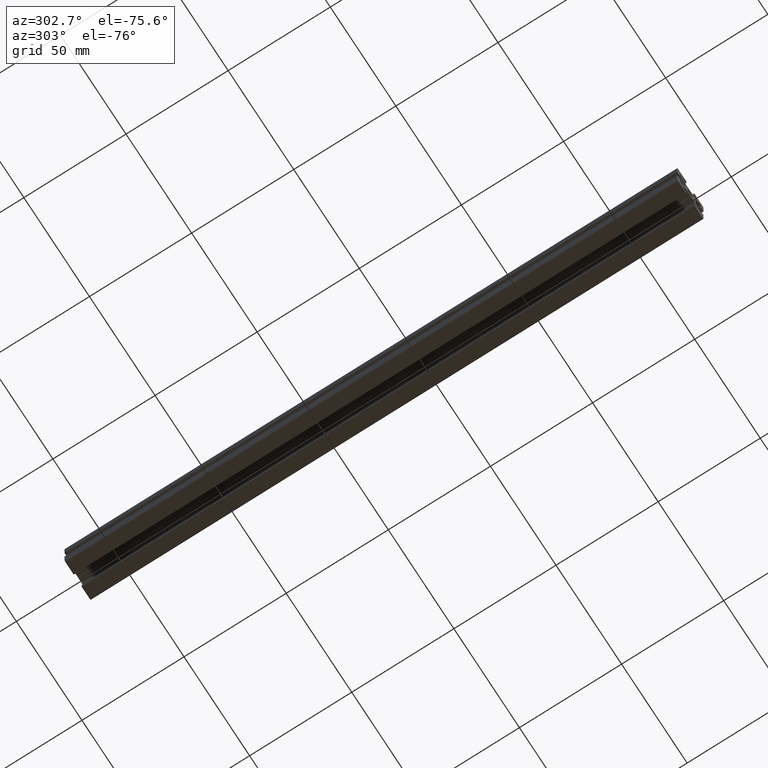
[diagram: clean part render]
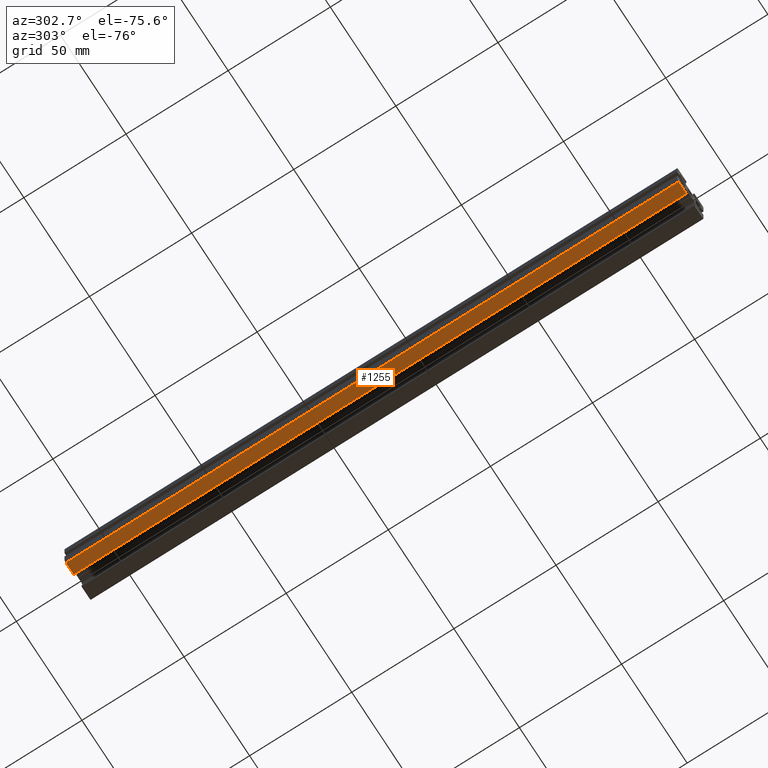
[diagram: same view with one face highlighted and labeled with its STEP entity id]
A machine part, auxiliary view. The second image highlights one B-rep face of the part: STEP entity #1255.
In plain terms, the highlighted planar face has unit normal (0, -0, -1).
Its self-contained STEP definition (entity closure, byte-faithful):
#42=FACE_OUTER_BOUND('',#106,.T.);
#106=EDGE_LOOP('',(#936,#937,#938,#939));
#177=LINE('',#1749,#350);
#248=LINE('',#1901,#421);
#250=LINE('',#1905,#423);
#251=LINE('',#1906,#424);
#350=VECTOR('',#1412,10.);
#421=VECTOR('',#1523,1000.);
#423=VECTOR('',#1527,1000.);
#424=VECTOR('',#1528,1000.);
#524=VERTEX_POINT('',#1746);
#525=VERTEX_POINT('',#1748);
#586=VERTEX_POINT('',#1900);
#587=VERTEX_POINT('',#1904);
#646=EDGE_CURVE('',#524,#525,#177,.T.);
#722=EDGE_CURVE('',#525,#586,#248,.T.);
#724=EDGE_CURVE('',#524,#587,#250,.T.);
#725=EDGE_CURVE('',#586,#587,#251,.T.);
#936=ORIENTED_EDGE('',*,*,#724,.T.);
#937=ORIENTED_EDGE('',*,*,#725,.F.);
#938=ORIENTED_EDGE('',*,*,#722,.F.);
#939=ORIENTED_EDGE('',*,*,#646,.F.);
#1196=PLANE('',#1339);
#1255=ADVANCED_FACE('',(#42),#1196,.T.);
#1339=AXIS2_PLACEMENT_3D('',#1903,#1525,#1526);
#1412=DIRECTION('',(1.,0.,0.));
#1523=DIRECTION('',(0.,0.,1.));
#1525=DIRECTION('center_axis',(0.,1.,0.));
#1526=DIRECTION('ref_axis',(0.,0.,1.));
#1527=DIRECTION('',(0.,0.,1.));
#1528=DIRECTION('',(-1.,0.,0.));
#1746=CARTESIAN_POINT('',(-9.,-1990.,-2280.00000000014));
#1748=CARTESIAN_POINT('',(-3.,-1990.,-2280.00000000014));
#1749=CARTESIAN_POINT('',(-6.,-1990.,-2280.00000000014));
#1900=CARTESIAN_POINT('',(-3.,-1990.,-1980.00000000014));
#1901=CARTESIAN_POINT('',(-3.,-1990.,-5980.00000000014));
#1903=CARTESIAN_POINT('Origin',(-3.,-1990.,-5980.00000000014));
#1904=CARTESIAN_POINT('',(-9.,-1990.,-1980.00000000014));
#1905=CARTESIAN_POINT('',(-9.,-1990.,-5980.00000000014));
#1906=CARTESIAN_POINT('',(-3.,-1990.,-1980.00000000014));